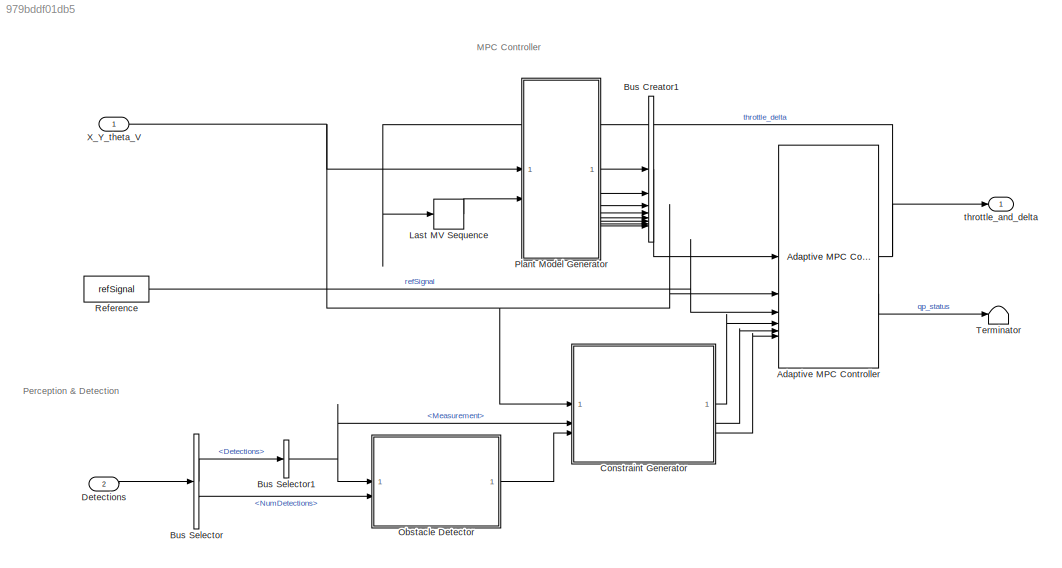
MODEL slx_979bddf01db5
KIND model
BLOCK [Reference] Adaptive MPC Controller  REF=mpclib/Adaptive MPC Controller  (lib defined in mdl_ae329e0e0455)
  SCDEnableBlockLinearizationSpecification = on
  SourceBlock = mpclib/Adaptive MPC Controller
  SourceType = Adaptive MPC
BLOCK [BusCreator] Bus Creator1
  DisplayOption = bar
  InheritFromInputs = on
  Inputs = 8
BLOCK [BusSelector] Bus Selector
  OutputSignals = Detections,NumDetections
BLOCK [BusSelector] Bus Selector1
  OutputSignals = Measurement
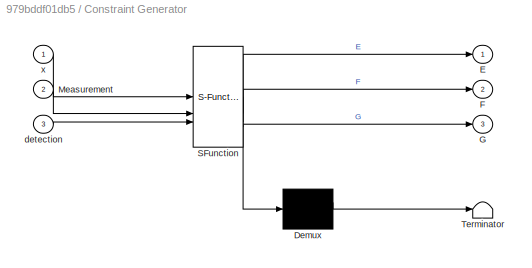
BLOCK [SubSystem] Constraint Generator
  ErrorFcn = Stateflow.Translate.translate
  PermitHierarchicalResolution = ExplicitOnly
  SFBlockType = MATLAB Function
  TreatAsAtomicUnit = on
BLOCK [Demux] Constraint Generator/ Demux 
  Outputs = 1
BLOCK [S-Function] Constraint Generator/ SFunction 
  EnableBusSupport = off
  FunctionName = sf_sfun
  Parameters = laneWidth,lanes
  PortCounts = [3 4]
  SFcnIsStateOwnerBlock = off
  SFunctionDeploymentMode = off
  Tag = Stateflow S-Function 4
BLOCK [Terminator] Constraint Generator/ Terminator 
BLOCK [Outport] Constraint Generator/E
  VectorParamsAs1DForOutWhenUnconnected = off
BLOCK [Outport] Constraint Generator/F
  Port = 2
  VectorParamsAs1DForOutWhenUnconnected = off
BLOCK [Outport] Constraint Generator/G
  Port = 3
  VectorParamsAs1DForOutWhenUnconnected = off
BLOCK [Inport] Constraint Generator/Measurement
  Port = 2
BLOCK [Inport] Constraint Generator/detection
  Port = 3
BLOCK [Inport] Constraint Generator/x
BLOCK [Inport] Detections
  OutDataTypeStr = Bus: BusObjectDetections1
  Port = 2
BLOCK [Memory] Last MV Sequence
  InheritSampleTime = on
  InitialCondition = u0
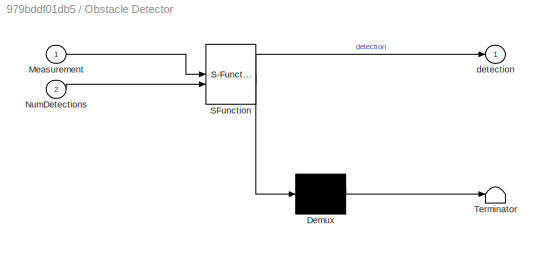
BLOCK [SubSystem] Obstacle Detector
  ErrorFcn = Stateflow.Translate.translate
  PermitHierarchicalResolution = ExplicitOnly
  SFBlockType = MATLAB Function
  TreatAsAtomicUnit = on
BLOCK [Demux] Obstacle Detector/ Demux 
  Outputs = 1
BLOCK [S-Function] Obstacle Detector/ SFunction 
  EnableBusSupport = off
  FunctionName = sf_sfun
  Parameters = DetectionDistance
  PortCounts = [2 2]
  SFcnIsStateOwnerBlock = off
  SFunctionDeploymentMode = off
  Tag = Stateflow S-Function 3
BLOCK [Terminator] Obstacle Detector/ Terminator 
BLOCK [Inport] Obstacle Detector/Measurement
BLOCK [Inport] Obstacle Detector/NumDetections
  Port = 2
BLOCK [Outport] Obstacle Detector/detection
  VectorParamsAs1DForOutWhenUnconnected = off
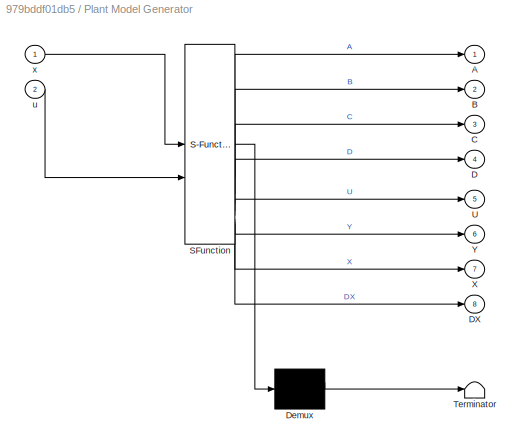
BLOCK [SubSystem] Plant Model Generator
  ErrorFcn = Stateflow.Translate.translate
  PermitHierarchicalResolution = ExplicitOnly
  SFBlockType = MATLAB Function
  TreatAsAtomicUnit = on
BLOCK [Demux] Plant Model Generator/ Demux 
  Outputs = 1
BLOCK [S-Function] Plant Model Generator/ SFunction 
  EnableBusSupport = off
  FunctionName = sf_sfun
  Parameters = TimeStep
  PortCounts = [2 9]
  SFcnIsStateOwnerBlock = off
  SFunctionDeploymentMode = off
  Tag = Stateflow S-Function 6
BLOCK [Terminator] Plant Model Generator/ Terminator 
BLOCK [Outport] Plant Model Generator/A
  VectorParamsAs1DForOutWhenUnconnected = off
BLOCK [Outport] Plant Model Generator/B
  Port = 2
  VectorParamsAs1DForOutWhenUnconnected = off
BLOCK [Outport] Plant Model Generator/C
  Port = 3
  VectorParamsAs1DForOutWhenUnconnected = off
BLOCK [Outport] Plant Model Generator/D
  Port = 4
  VectorParamsAs1DForOutWhenUnconnected = off
BLOCK [Outport] Plant Model Generator/DX
  Port = 8
  VectorParamsAs1DForOutWhenUnconnected = off
BLOCK [Outport] Plant Model Generator/U
  Port = 5
  VectorParamsAs1DForOutWhenUnconnected = off
BLOCK [Outport] Plant Model Generator/X
  Port = 7
  VectorParamsAs1DForOutWhenUnconnected = off
BLOCK [Outport] Plant Model Generator/Y
  Port = 6
  VectorParamsAs1DForOutWhenUnconnected = off
BLOCK [Inport] Plant Model Generator/u
  Port = 2
BLOCK [Inport] Plant Model Generator/x
BLOCK [Constant] Reference
  Value = refSignal
  VectorParams1D = off
BLOCK [Terminator] Terminator
BLOCK [Inport] X_Y_theta_V
  PortDimensions = 4
BLOCK [Outport] throttle_and_delta
ANNOTATION (root): MPC Controller
ANNOTATION (root): Perception & Detection
NET Adaptive MPC Controller:1 -> Last MV Sequence:1, throttle_and_delta:1
LINE Adaptive MPC Controller:2 -> Terminator:1
LINE Bus Creator1:1 -> Adaptive MPC Controller:1
NET Bus Selector1:1 -> Constraint Generator:2, Obstacle Detector:1
LINE Bus Selector:1 -> Bus Selector1:1
LINE Bus Selector:2 -> Obstacle Detector:2
LINE Constraint Generator:1 -> Adaptive MPC Controller:4
LINE Constraint Generator:2 -> Adaptive MPC Controller:5
LINE Constraint Generator:3 -> Adaptive MPC Controller:6
LINE Detections:1 -> Bus Selector:1
LINE Last MV Sequence:1 -> Plant Model Generator:2
LINE Obstacle Detector:1 -> Constraint Generator:3
LINE Plant Model Generator:1 -> Bus Creator1:1
LINE Plant Model Generator:2 -> Bus Creator1:2
LINE Plant Model Generator:3 -> Bus Creator1:3
LINE Plant Model Generator:4 -> Bus Creator1:4
LINE Plant Model Generator:5 -> Bus Creator1:5
LINE Plant Model Generator:6 -> Bus Creator1:6
LINE Plant Model Generator:7 -> Bus Creator1:7
LINE Plant Model Generator:8 -> Bus Creator1:8
LINE Reference:1 -> Adaptive MPC Controller:3
NET X_Y_theta_V:1 -> Adaptive MPC Controller:2, Constraint Generator:1, Plant Model Generator:1
note: NET lines group one-source signal fan-out (src -> all destinations, sorted); 1:1 wires keep LINE
CHART Obstacle Detector states=1 transitions=1
  STATE_LABEL 'eML_blk_kernel()'
  STATE_LABEL 'SCRIPT:\nfunction detection  = fcn(Measurement, NumDetections, DetectionDistance)\n% Detection Logic: it determine when the vehicle sees the obstacle\ndetection = obstacleDetect(Measurement, NumDetections, DetectionDistance);\n'
CHART Constraint Generator states=1 transitions=1
  STATE_LABEL 'eML_blk_kernel()'
  STATE_LABEL 'SCRIPT:\nfunction [E,F,G] = fcn(x, Measurement, detection, laneWidth, lanes)\n% Generate run-time custom constraint\n[E,F,G] = obstacleComputeCustomConstraint(x, Measurement, detection, laneWidth, lanes);\n'
CHART Plant Model Generator states=1 transitions=1
  STATE_LABEL 'eML_blk_kernel()'
  STATE_LABEL 'SCRIPT:\nfunction [A,B,C,D,U,Y,X,DX] = fcn(x,u,TimeStep)\n[A,B,C,D,U,Y,X,DX] = obstacleVehicleModelDT(TimeStep,x,u);\n'
CHART  states=0 transitions=0
CHART  states=0 transitions=0
CHART  states=0 transitions=0
